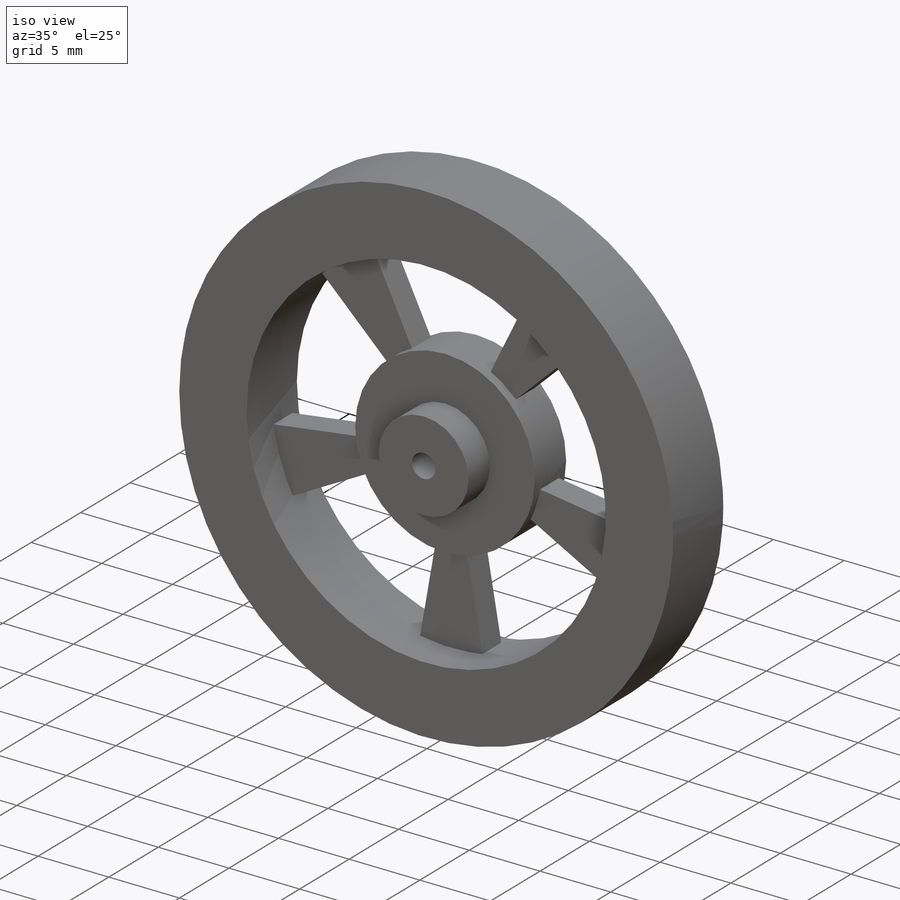
[diagram: iso view]
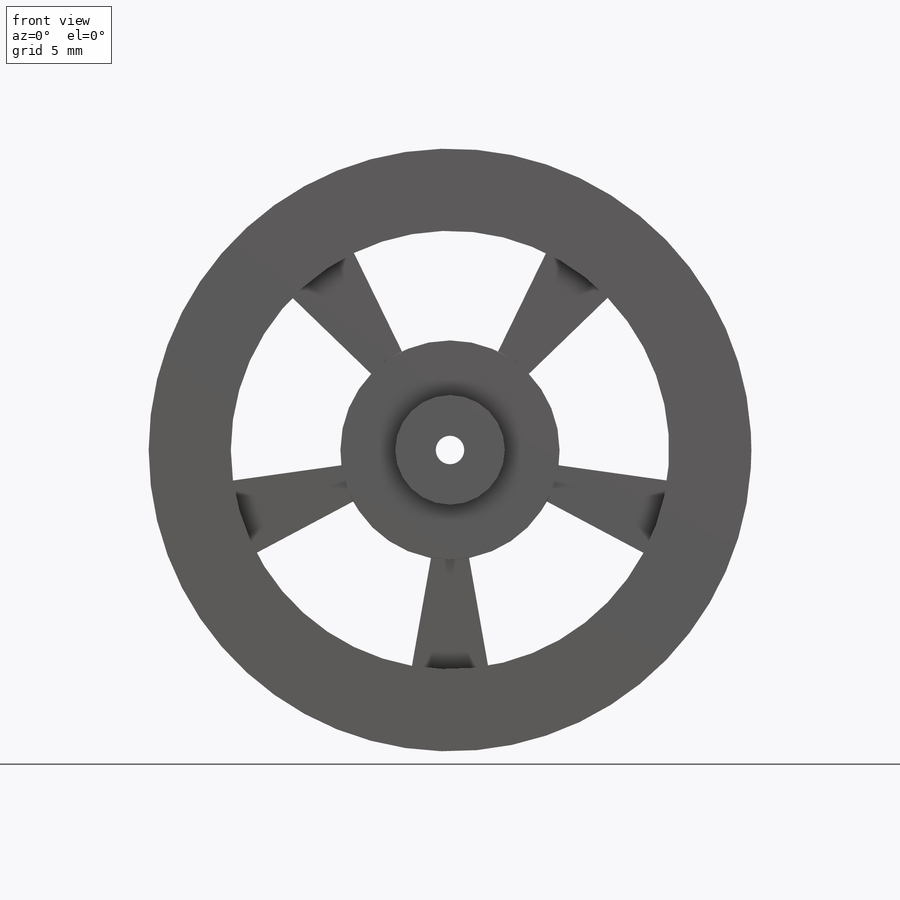
[diagram: front view]
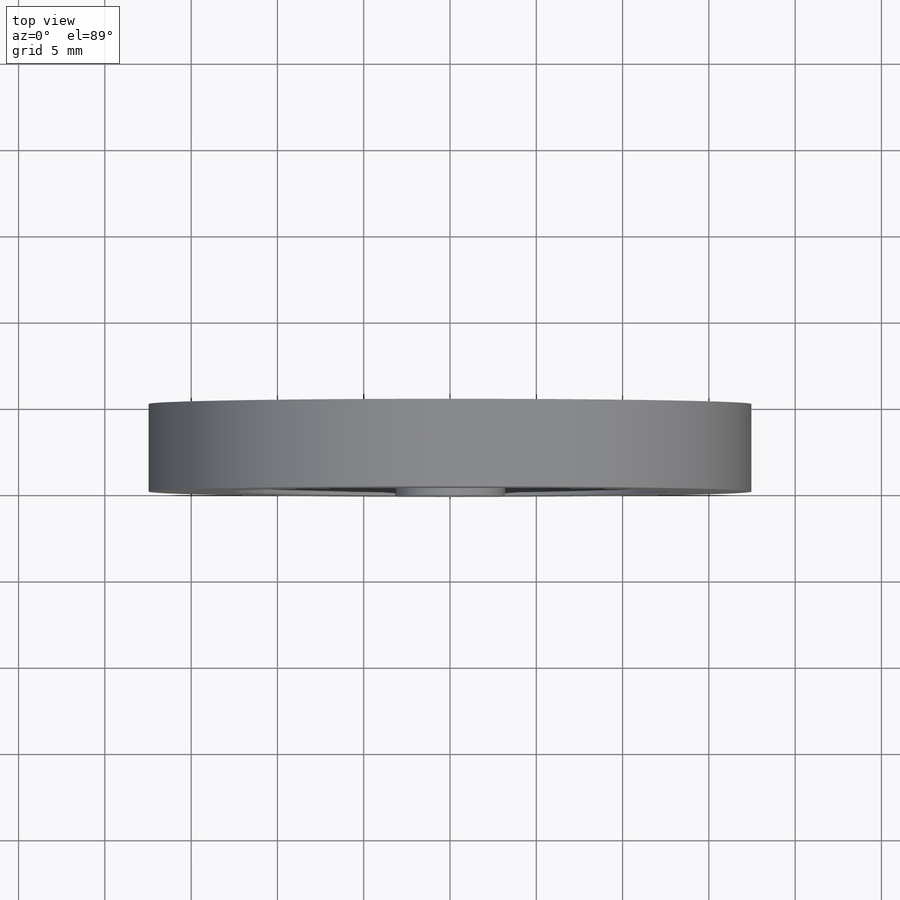
[diagram: top view]
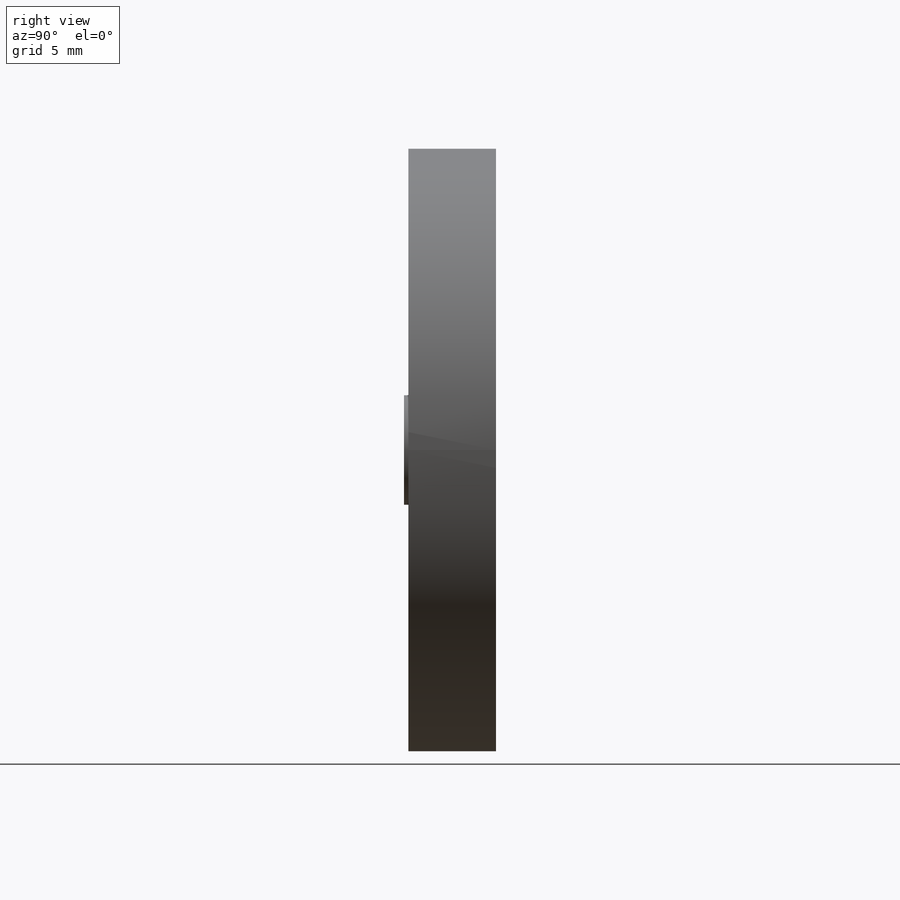
[diagram: right view]
SOLIDWORKS PART (.sldprt)
format: sldprt  version: not decoded by parser v0  size: 437,760 bytes
history: native  units: mm
features: sketch x7, cut_extrude x5, extrude x2, material x1 (+11 scaffold rows collapsed)
feature tree (26):
  scaffold x11  (default folders/planes/origin — collapsed)
  material  "Material <not specified>"
  sketch  "Sketch1"  dims[D1=18.415mm]
  extrude  "Boss-Extrude1"  Depth=5.08mm
  sketch  "Sketch2"  dims[c1.D1=~6.334456mm c2.D1=20.0deg c2.D2=6.35mm c3.D2=10.0deg c3.D3=5.0]
  cut_extrude  "Cut-Extrude1"  Depth=5.08mm
  sketch  "Sketch3"  dims[D1=~2.683068mm]
  extrude  "Boss-Extrude2"  Depth=0.254mm
  sketch  "Sketch4"  dims[D1=1.651mm]
  cut_extrude  "Cut-Extrude2"  [1 undecoded]
  sketch  "Sketch5"
  cut_extrude  "Cut-Extrude3"  Depth=2.54mm
  sketch  "Sketch6"
  cut_extrude  "Cut-Extrude4"  Depth=0.635mm
  sketch  "Sketch7"
  cut_extrude  "Cut-Extrude5"  Depth=1.905mm
decode coverage: 10 of 14 modeling features carry decoded parameters
note: ~ marks probable driven/reference dimensions
note: 1 parameter value undecoded
note: suppression state not decoded; provenance and decode notes live in map.json
